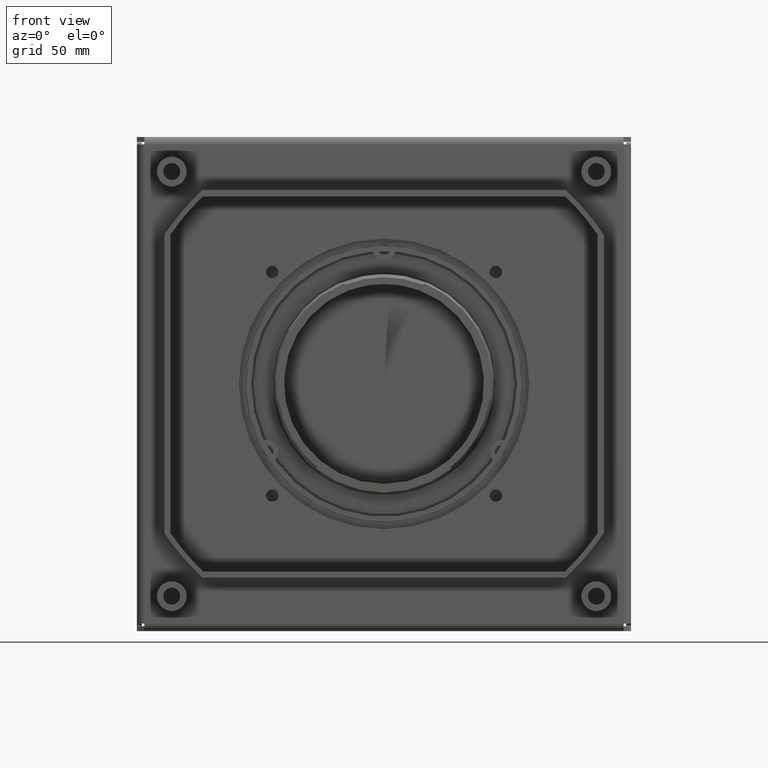
[diagram: clean part render]
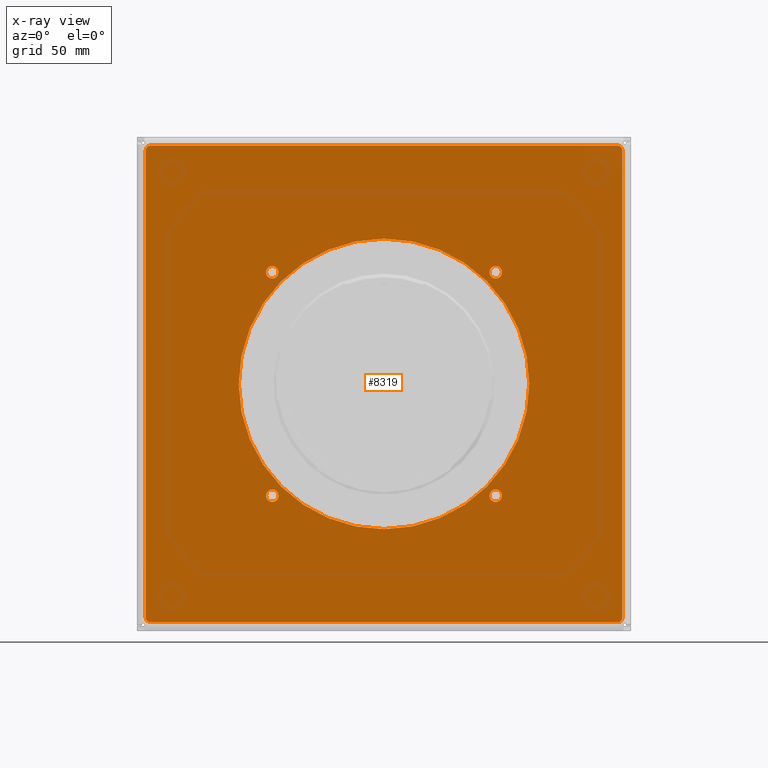
[diagram: x-ray — body ghosted, one internal face saturated and labeled with its STEP entity id]
A machine part, front view, then the same camera in x-ray: the body is ghosted and one INTERNAL B-rep face — a face not visible from any outside direction — is saturated and labeled: STEP entity #8319.
In plain terms, the highlighted planar face has unit normal (0, -1, 0).
Its self-contained STEP definition (entity closure, byte-faithful):
#7950=CARTESIAN_POINT('',(0.E0,0.E0,0.E0));
#7951=DIRECTION('',(0.E0,-1.E0,0.E0));
#7952=DIRECTION('',(1.E0,0.E0,0.E0));
#7953=AXIS2_PLACEMENT_3D('',#7950,#7951,#7952);
#7955=CARTESIAN_POINT('',(0.E0,0.E0,0.E0));
#7956=DIRECTION('',(0.E0,-1.E0,0.E0));
#7957=DIRECTION('',(-1.E0,0.E0,0.E0));
#7958=AXIS2_PLACEMENT_3D('',#7955,#7956,#7957);
#7960=CARTESIAN_POINT('',(-4.5E1,0.E0,-4.5E1));
#7961=DIRECTION('',(0.E0,-1.E0,0.E0));
#7962=DIRECTION('',(1.E0,0.E0,0.E0));
#7963=AXIS2_PLACEMENT_3D('',#7960,#7961,#7962);
#7965=CARTESIAN_POINT('',(-4.5E1,0.E0,-4.5E1));
#7966=DIRECTION('',(0.E0,-1.E0,0.E0));
#7967=DIRECTION('',(-1.E0,0.E0,0.E0));
#7968=AXIS2_PLACEMENT_3D('',#7965,#7966,#7967);
#7970=CARTESIAN_POINT('',(-4.5E1,0.E0,4.5E1));
#7971=DIRECTION('',(0.E0,-1.E0,0.E0));
#7972=DIRECTION('',(1.E0,0.E0,0.E0));
#7973=AXIS2_PLACEMENT_3D('',#7970,#7971,#7972);
#7975=CARTESIAN_POINT('',(-4.5E1,0.E0,4.5E1));
#7976=DIRECTION('',(0.E0,-1.E0,0.E0));
#7977=DIRECTION('',(-1.E0,0.E0,0.E0));
#7978=AXIS2_PLACEMENT_3D('',#7975,#7976,#7977);
#7980=CARTESIAN_POINT('',(4.5E1,0.E0,4.5E1));
#7981=DIRECTION('',(0.E0,-1.E0,0.E0));
#7982=DIRECTION('',(1.E0,0.E0,0.E0));
#7983=AXIS2_PLACEMENT_3D('',#7980,#7981,#7982);
#7985=CARTESIAN_POINT('',(4.5E1,0.E0,4.5E1));
#7986=DIRECTION('',(0.E0,-1.E0,0.E0));
#7987=DIRECTION('',(-1.E0,0.E0,0.E0));
#7988=AXIS2_PLACEMENT_3D('',#7985,#7986,#7987);
#7990=CARTESIAN_POINT('',(4.5E1,0.E0,-4.5E1));
#7991=DIRECTION('',(0.E0,-1.E0,0.E0));
#7992=DIRECTION('',(1.E0,0.E0,0.E0));
#7993=AXIS2_PLACEMENT_3D('',#7990,#7991,#7992);
#7995=CARTESIAN_POINT('',(4.5E1,0.E0,-4.5E1));
#7996=DIRECTION('',(0.E0,-1.E0,0.E0));
#7997=DIRECTION('',(-1.E0,0.E0,0.E0));
#7998=AXIS2_PLACEMENT_3D('',#7995,#7996,#7997);
#8000=CARTESIAN_POINT('',(-9.4E1,0.E0,-9.4E1));
#8001=DIRECTION('',(0.E0,1.E0,0.E0));
#8002=DIRECTION('',(0.E0,0.E0,-1.E0));
#8003=AXIS2_PLACEMENT_3D('',#8000,#8001,#8002);
#8005=DIRECTION('',(0.E0,0.E0,1.E0));
#8006=VECTOR('',#8005,1.88E2);
#8007=CARTESIAN_POINT('',(-9.6E1,0.E0,-9.4E1));
#8008=LINE('',#8007,#8006);
#8009=CARTESIAN_POINT('',(-9.4E1,0.E0,9.4E1));
#8010=DIRECTION('',(0.E0,1.E0,0.E0));
#8011=DIRECTION('',(-1.E0,0.E0,-2.060573933704E-13));
#8012=AXIS2_PLACEMENT_3D('',#8009,#8010,#8011);
#8014=DIRECTION('',(1.E0,0.E0,0.E0));
#8015=VECTOR('',#8014,1.88E2);
#8016=CARTESIAN_POINT('',(-9.4E1,0.E0,9.6E1));
#8017=LINE('',#8016,#8015);
#8018=CARTESIAN_POINT('',(9.4E1,0.E0,9.4E1));
#8019=DIRECTION('',(0.E0,1.E0,0.E0));
#8020=DIRECTION('',(0.E0,0.E0,1.E0));
#8021=AXIS2_PLACEMENT_3D('',#8018,#8019,#8020);
#8023=DIRECTION('',(0.E0,0.E0,-1.E0));
#8024=VECTOR('',#8023,1.88E2);
#8025=CARTESIAN_POINT('',(9.6E1,0.E0,9.4E1));
#8026=LINE('',#8025,#8024);
#8027=CARTESIAN_POINT('',(9.4E1,0.E0,-9.4E1));
#8028=DIRECTION('',(0.E0,1.E0,0.E0));
#8029=DIRECTION('',(1.E0,0.E0,0.E0));
#8030=AXIS2_PLACEMENT_3D('',#8027,#8028,#8029);
#8032=DIRECTION('',(-1.E0,0.E0,0.E0));
#8033=VECTOR('',#8032,1.88E2);
#8034=CARTESIAN_POINT('',(9.4E1,0.E0,-9.6E1));
#8035=LINE('',#8034,#8033);
#8194=CARTESIAN_POINT('',(5.85E1,0.E0,0.E0));
#8195=CARTESIAN_POINT('',(-5.85E1,0.E0,0.E0));
#8196=VERTEX_POINT('',#8194);
#8197=VERTEX_POINT('',#8195);
#8198=CARTESIAN_POINT('',(-4.25E1,0.E0,-4.5E1));
#8199=CARTESIAN_POINT('',(-4.75E1,0.E0,-4.5E1));
#8200=VERTEX_POINT('',#8198);
#8201=VERTEX_POINT('',#8199);
#8202=CARTESIAN_POINT('',(-4.25E1,0.E0,4.5E1));
#8203=CARTESIAN_POINT('',(-4.75E1,0.E0,4.5E1));
#8204=VERTEX_POINT('',#8202);
#8205=VERTEX_POINT('',#8203);
#8206=CARTESIAN_POINT('',(4.75E1,0.E0,4.5E1));
#8207=CARTESIAN_POINT('',(4.25E1,0.E0,4.5E1));
#8208=VERTEX_POINT('',#8206);
#8209=VERTEX_POINT('',#8207);
#8210=CARTESIAN_POINT('',(4.75E1,0.E0,-4.5E1));
#8211=CARTESIAN_POINT('',(4.25E1,0.E0,-4.5E1));
#8212=VERTEX_POINT('',#8210);
#8213=VERTEX_POINT('',#8211);
#8214=CARTESIAN_POINT('',(-9.4E1,0.E0,-9.6E1));
#8215=CARTESIAN_POINT('',(-9.6E1,0.E0,-9.4E1));
#8216=VERTEX_POINT('',#8214);
#8217=VERTEX_POINT('',#8215);
#8218=CARTESIAN_POINT('',(-9.6E1,0.E0,9.4E1));
#8219=VERTEX_POINT('',#8218);
#8220=CARTESIAN_POINT('',(-9.4E1,0.E0,9.6E1));
#8221=VERTEX_POINT('',#8220);
#8222=CARTESIAN_POINT('',(9.4E1,0.E0,9.6E1));
#8223=VERTEX_POINT('',#8222);
#8224=CARTESIAN_POINT('',(9.6E1,0.E0,9.4E1));
#8225=VERTEX_POINT('',#8224);
#8226=CARTESIAN_POINT('',(9.6E1,0.E0,-9.4E1));
#8227=VERTEX_POINT('',#8226);
#8228=CARTESIAN_POINT('',(9.4E1,0.E0,-9.6E1));
#8229=VERTEX_POINT('',#8228);
#8266=CARTESIAN_POINT('',(0.E0,0.E0,0.E0));
#8267=DIRECTION('',(0.E0,1.E0,0.E0));
#8268=DIRECTION('',(1.E0,0.E0,0.E0));
#8269=AXIS2_PLACEMENT_3D('',#8266,#8267,#8268);
#8270=PLANE('',#8269);
#8272=ORIENTED_EDGE('',*,*,#8271,.T.);
#8274=ORIENTED_EDGE('',*,*,#8273,.T.);
#8276=ORIENTED_EDGE('',*,*,#8275,.T.);
#8278=ORIENTED_EDGE('',*,*,#8277,.T.);
#8280=ORIENTED_EDGE('',*,*,#8279,.T.);
#8282=ORIENTED_EDGE('',*,*,#8281,.T.);
#8284=ORIENTED_EDGE('',*,*,#8283,.T.);
#8286=ORIENTED_EDGE('',*,*,#8285,.T.);
#8287=EDGE_LOOP('',(#8272,#8274,#8276,#8278,#8280,#8282,#8284,#8286));
#8288=FACE_OUTER_BOUND('',#8287,.F.);
#8290=ORIENTED_EDGE('',*,*,#8289,.T.);
#8292=ORIENTED_EDGE('',*,*,#8291,.T.);
#8293=EDGE_LOOP('',(#8290,#8292));
#8294=FACE_BOUND('',#8293,.F.);
#8296=ORIENTED_EDGE('',*,*,#8295,.T.);
#8298=ORIENTED_EDGE('',*,*,#8297,.T.);
#8299=EDGE_LOOP('',(#8296,#8298));
#8300=FACE_BOUND('',#8299,.F.);
#8302=ORIENTED_EDGE('',*,*,#8301,.T.);
#8304=ORIENTED_EDGE('',*,*,#8303,.T.);
#8305=EDGE_LOOP('',(#8302,#8304));
#8306=FACE_BOUND('',#8305,.F.);
#8308=ORIENTED_EDGE('',*,*,#8307,.T.);
#8310=ORIENTED_EDGE('',*,*,#8309,.T.);
#8311=EDGE_LOOP('',(#8308,#8310));
#8312=FACE_BOUND('',#8311,.F.);
#8314=ORIENTED_EDGE('',*,*,#8313,.T.);
#8316=ORIENTED_EDGE('',*,*,#8315,.T.);
#8317=EDGE_LOOP('',(#8314,#8316));
#8318=FACE_BOUND('',#8317,.F.);
#7954=CIRCLE('',#7953,5.85E1);
#7959=CIRCLE('',#7958,5.85E1);
#7964=CIRCLE('',#7963,2.5E0);
#7969=CIRCLE('',#7968,2.5E0);
#7974=CIRCLE('',#7973,2.5E0);
#7979=CIRCLE('',#7978,2.5E0);
#7984=CIRCLE('',#7983,2.5E0);
#7989=CIRCLE('',#7988,2.5E0);
#7994=CIRCLE('',#7993,2.5E0);
#7999=CIRCLE('',#7998,2.5E0);
#8004=CIRCLE('',#8003,2.E0);
#8013=CIRCLE('',#8012,2.E0);
#8022=CIRCLE('',#8021,2.E0);
#8031=CIRCLE('',#8030,2.E0);
#8271=EDGE_CURVE('',#8216,#8217,#8004,.T.);
#8273=EDGE_CURVE('',#8217,#8219,#8008,.T.);
#8275=EDGE_CURVE('',#8219,#8221,#8013,.T.);
#8277=EDGE_CURVE('',#8221,#8223,#8017,.T.);
#8279=EDGE_CURVE('',#8223,#8225,#8022,.T.);
#8281=EDGE_CURVE('',#8225,#8227,#8026,.T.);
#8283=EDGE_CURVE('',#8227,#8229,#8031,.T.);
#8285=EDGE_CURVE('',#8229,#8216,#8035,.T.);
#8289=EDGE_CURVE('',#8200,#8201,#7964,.T.);
#8291=EDGE_CURVE('',#8201,#8200,#7969,.T.);
#8295=EDGE_CURVE('',#8204,#8205,#7974,.T.);
#8297=EDGE_CURVE('',#8205,#8204,#7979,.T.);
#8301=EDGE_CURVE('',#8208,#8209,#7984,.T.);
#8303=EDGE_CURVE('',#8209,#8208,#7989,.T.);
#8307=EDGE_CURVE('',#8212,#8213,#7994,.T.);
#8309=EDGE_CURVE('',#8213,#8212,#7999,.T.);
#8313=EDGE_CURVE('',#8196,#8197,#7954,.T.);
#8315=EDGE_CURVE('',#8197,#8196,#7959,.T.);
#8319=ADVANCED_FACE('',(#8288,#8294,#8300,#8306,#8312,#8318),#8270,.F.);